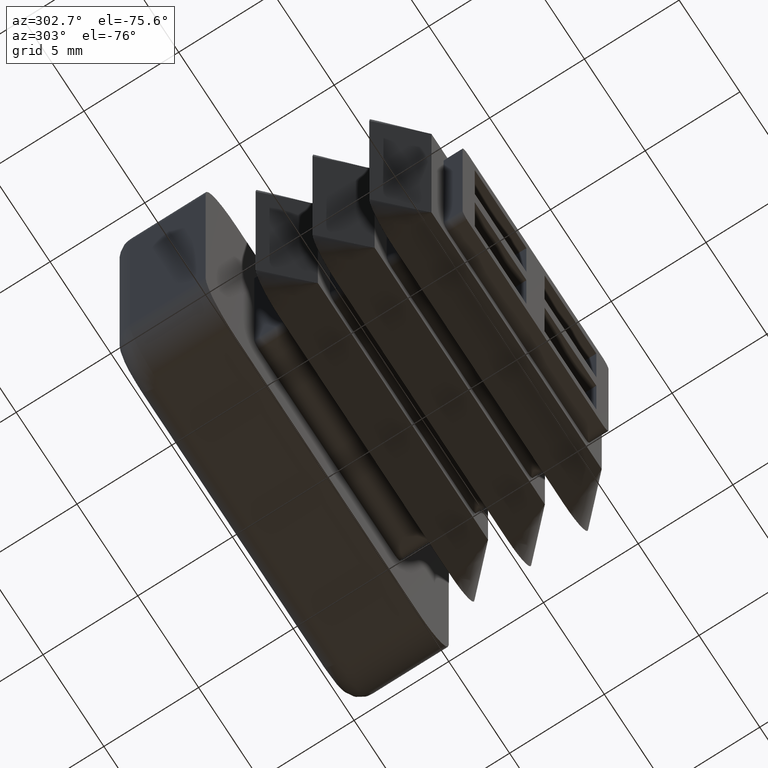
[diagram: clean part render]
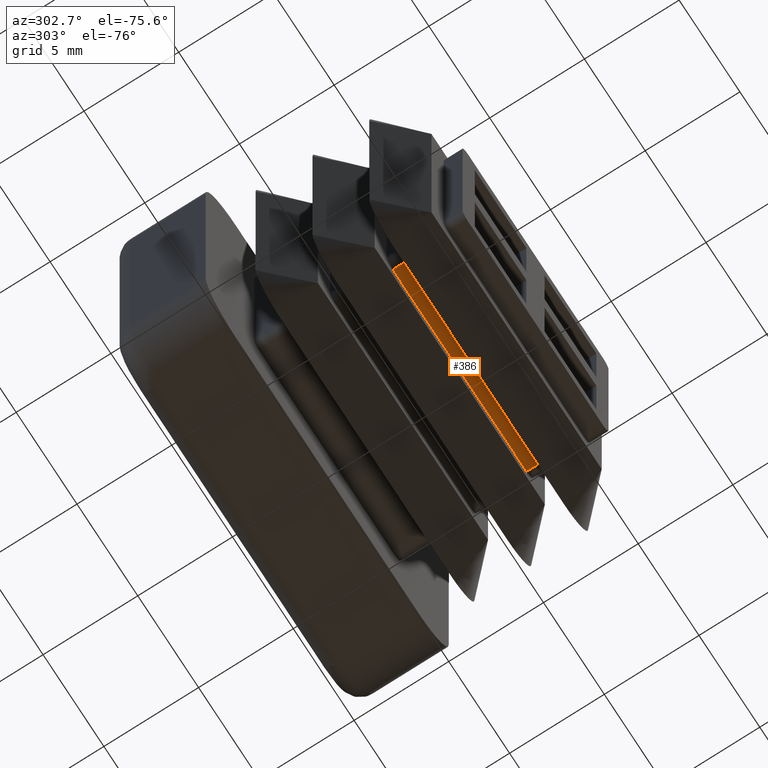
[diagram: same view with one face highlighted and labeled with its STEP entity id]
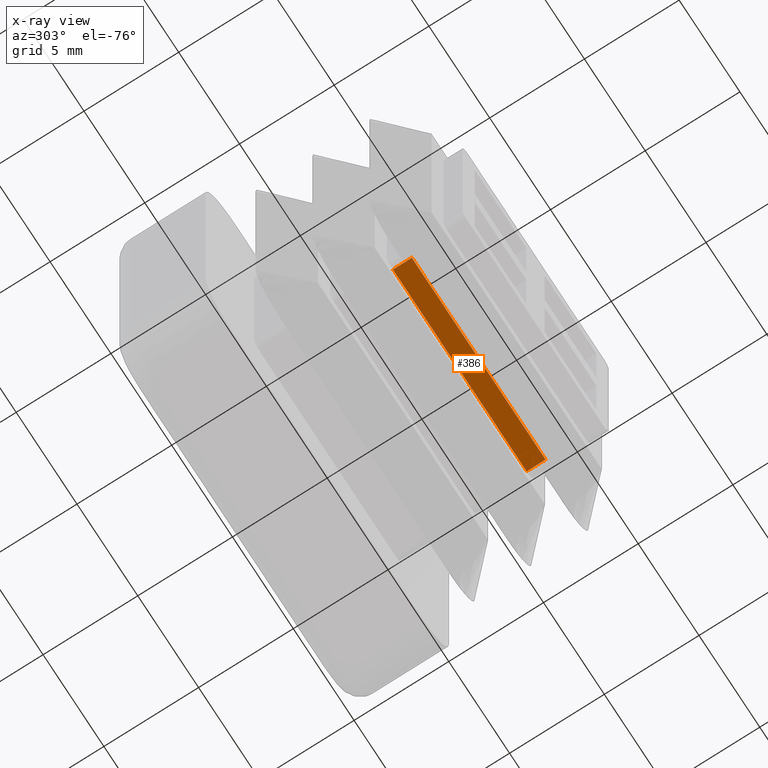
[diagram: x-ray of the same camera — body ghosted, the highlighted face saturated]
A machine part, auxiliary view. The second image highlights one B-rep face of the part: STEP entity #386.
The next image is the same camera in x-ray: the body ghosted, the highlighted face saturated — about 0% of this face is hidden behind the body in this view.
In plain terms, the highlighted planar face has unit normal (0, 0, 1).
Its self-contained STEP definition (entity closure, byte-faithful):
#328=CARTESIAN_POINT('',(-5.499999999999998,-8.0,-5.999999999999998));
#329=VERTEX_POINT('',#328);
#330=CARTESIAN_POINT('',(-5.499999999999998,-7.0,-5.999999999999998));
#331=VERTEX_POINT('',#330);
#332=CARTESIAN_POINT('',(-5.499999999999998,-8.0,-5.999999999999998));
#333=DIRECTION('',(0.0,1.0,0.0));
#334=VECTOR('',#333,1.0);
#335=LINE('',#332,#334);
#336=EDGE_CURVE('',#329,#331,#335,.T.);
#356=CARTESIAN_POINT('',(-6.049999999999998,-8.050000000000001,-5.999999999999998));
#357=DIRECTION('',(0.0,0.0,1.0));
#358=DIRECTION('',(1.0,0.0,0.0));
#359=AXIS2_PLACEMENT_3D('',#356,#357,#358);
#360=PLANE('',#359);
#361=CARTESIAN_POINT('',(5.500000000000005,-8.0,-5.999999999999998));
#362=VERTEX_POINT('',#361);
#363=CARTESIAN_POINT('',(-5.499999999999998,-8.0,-5.999999999999998));
#364=DIRECTION('',(1.0,0.0,0.0));
#365=VECTOR('',#364,11.000000000000004);
#366=LINE('',#363,#365);
#367=EDGE_CURVE('',#329,#362,#366,.T.);
#368=ORIENTED_EDGE('',*,*,#367,.F.);
#369=ORIENTED_EDGE('',*,*,#336,.T.);
#370=CARTESIAN_POINT('',(5.500000000000004,-7.0,-5.999999999999998));
#371=VERTEX_POINT('',#370);
#372=CARTESIAN_POINT('',(-5.499999999999998,-7.0,-5.999999999999998));
#373=DIRECTION('',(1.0,0.0,0.0));
#374=VECTOR('',#373,11.000000000000004);
#375=LINE('',#372,#374);
#376=EDGE_CURVE('',#331,#371,#375,.T.);
#377=ORIENTED_EDGE('',*,*,#376,.T.);
#378=CARTESIAN_POINT('',(5.500000000000004,-8.0,-5.999999999999998));
#379=DIRECTION('',(0.0,1.0,0.0));
#380=VECTOR('',#379,1.0);
#381=LINE('',#378,#380);
#382=EDGE_CURVE('',#362,#371,#381,.T.);
#383=ORIENTED_EDGE('',*,*,#382,.F.);
#384=EDGE_LOOP('',(#368,#369,#377,#383));
#385=FACE_OUTER_BOUND('',#384,.T.);
#386=ADVANCED_FACE('',(#385),#360,.F.);